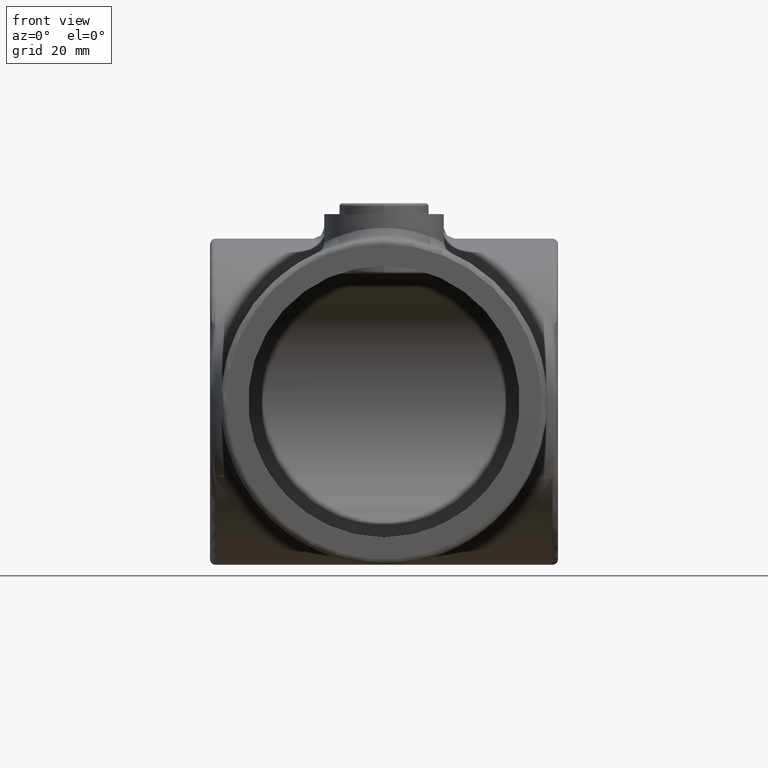
[diagram: clean part render]
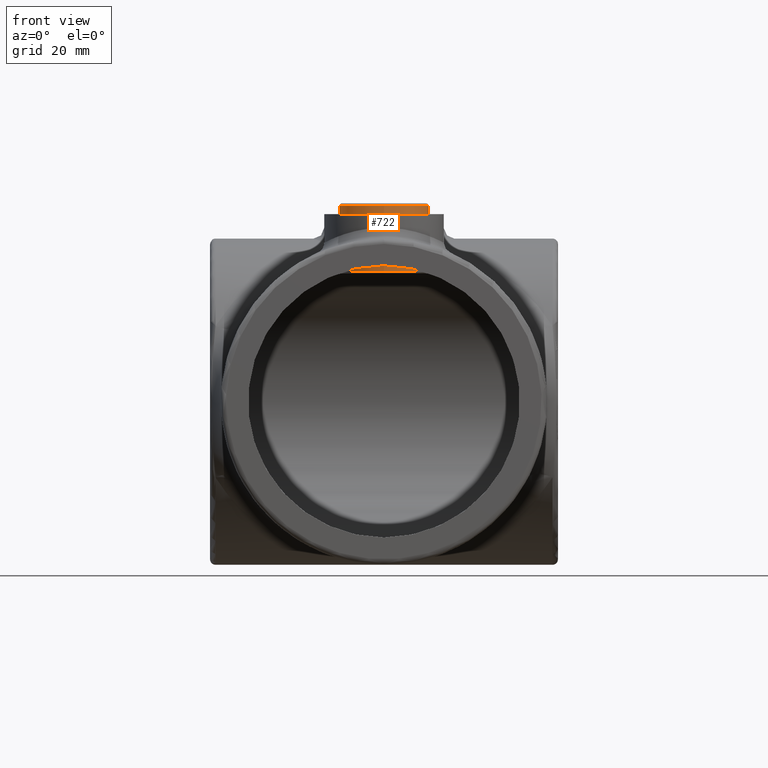
[diagram: same view with one face highlighted and labeled with its STEP entity id]
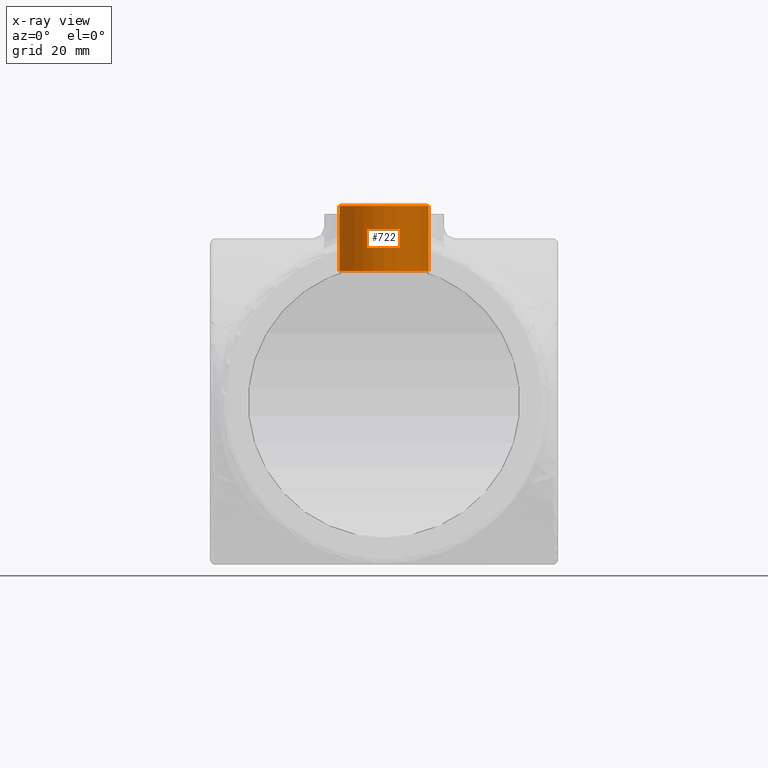
[diagram: x-ray of the same camera — body ghosted, the highlighted face saturated]
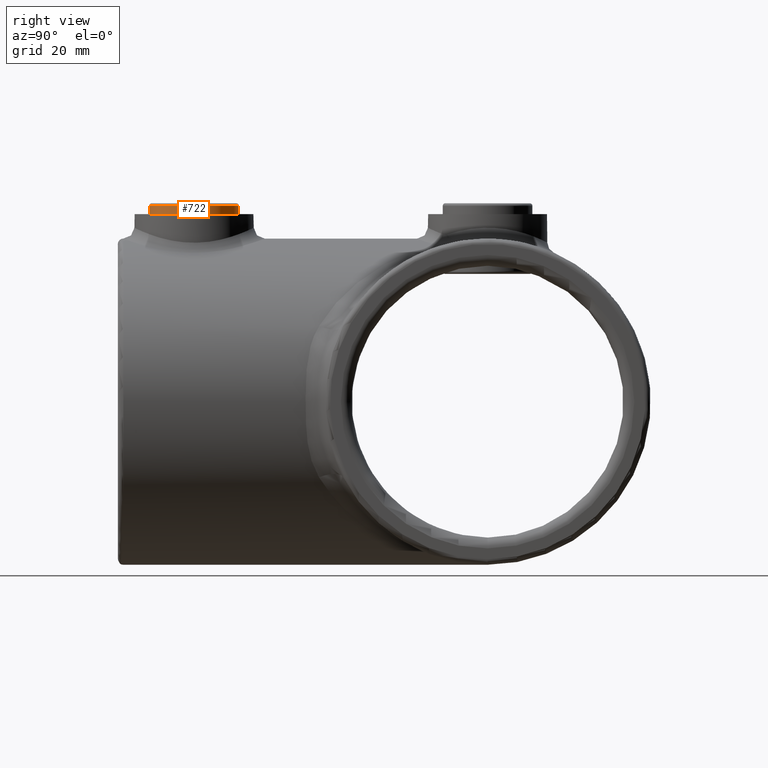
[diagram: same view with one face highlighted and labeled with its STEP entity id]
A machine part, front view. The second image highlights one B-rep face of the part: STEP entity #722.
The next image is the same camera in x-ray: the body ghosted, the highlighted face saturated — about 0% of this face is hidden behind the body in this view.
A second angle (right view) of the same face is appended — the face is thin or edge-on in the first view.
In plain terms, the highlighted cylindrical surface (bore or boss wall) has radius 8.25 mm, axis along (0, 0, -1).
Its self-contained STEP definition (entity closure, byte-faithful):
#24 = FACE_OUTER_BOUND ( 'NONE', #3568, .T. ) ;
#66 = CIRCLE ( 'NONE', #3655, 8.250000000000001776 ) ;
#116 = DIRECTION ( 'NONE',  ( 1.110223024625156294E-16, 0.000000000000000000, -1.000000000000000000 ) ) ;
#140 = EDGE_LOOP ( 'NONE', ( #3075 ) ) ;
#345 = CARTESIAN_POINT ( 'NONE',  ( -9.159339953157541458E-16, 12.49999999999999645, 8.250000000000001776 ) ) ;
#594 = DIRECTION ( 'NONE',  ( -1.110223024625156294E-16, 0.000000000000000000, 1.000000000000000000 ) ) ;
#659 = VERTEX_POINT ( 'NONE', #345 ) ;
#722 = ADVANCED_FACE ( 'NONE', ( #24, #3323 ), #773, .T. ) ;
#771 = AXIS2_PLACEMENT_3D ( 'NONE', #1695, #1683, #116 ) ;
#773 = CYLINDRICAL_SURFACE ( 'NONE', #771, 8.250000000000001776 ) ;
#1226 = DIRECTION ( 'NONE',  ( -1.110223024625156294E-16, 0.000000000000000000, 1.000000000000000000 ) ) ;
#1227 = CARTESIAN_POINT ( 'NONE',  ( 0.000000000000000000, 0.5000000000000004441, 0.000000000000000000 ) ) ;
#1394 = VERTEX_POINT ( 'NONE', #2912 ) ;
#1416 = AXIS2_PLACEMENT_3D ( 'NONE', #2500, #3444, #1226 ) ;
#1559 = CIRCLE ( 'NONE', #1416, 8.250000000000001776 ) ;
#1617 = ORIENTED_EDGE ( 'NONE', *, *, #2287, .T. ) ;
#1683 = DIRECTION ( 'NONE',  ( 0.000000000000000000, -1.000000000000000000, 0.000000000000000000 ) ) ;
#1695 = CARTESIAN_POINT ( 'NONE',  ( 0.000000000000000000, 12.99999999999999822, 0.000000000000000000 ) ) ;
#2287 = EDGE_CURVE ( 'NONE', #1394, #1394, #66, .T. ) ;
#2500 = CARTESIAN_POINT ( 'NONE',  ( 0.000000000000000000, 12.49999999999999645, 0.000000000000000000 ) ) ;
#2912 = CARTESIAN_POINT ( 'NONE',  ( -9.159339953157541458E-16, 0.5000000000000004441, 8.250000000000001776 ) ) ;
#3075 = ORIENTED_EDGE ( 'NONE', *, *, #3911, .T. ) ;
#3323 = FACE_OUTER_BOUND ( 'NONE', #140, .T. ) ;
#3444 = DIRECTION ( 'NONE',  ( -0.000000000000000000, -1.000000000000000000, -0.000000000000000000 ) ) ;
#3460 = DIRECTION ( 'NONE',  ( 0.000000000000000000, 1.000000000000000000, 0.000000000000000000 ) ) ;
#3568 = EDGE_LOOP ( 'NONE', ( #1617 ) ) ;
#3655 = AXIS2_PLACEMENT_3D ( 'NONE', #1227, #3460, #594 ) ;
#3911 = EDGE_CURVE ( 'NONE', #659, #659, #1559, .T. ) ;